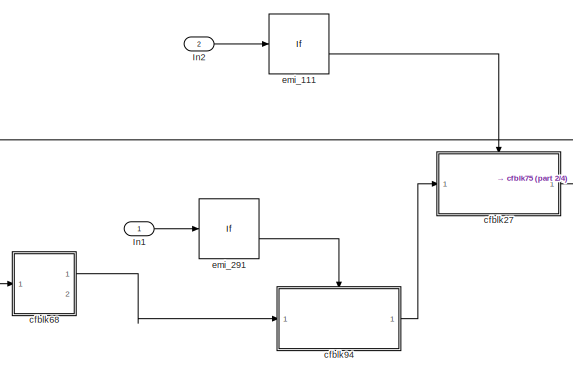
[diagram: root canvas - part 1/4, top center region]
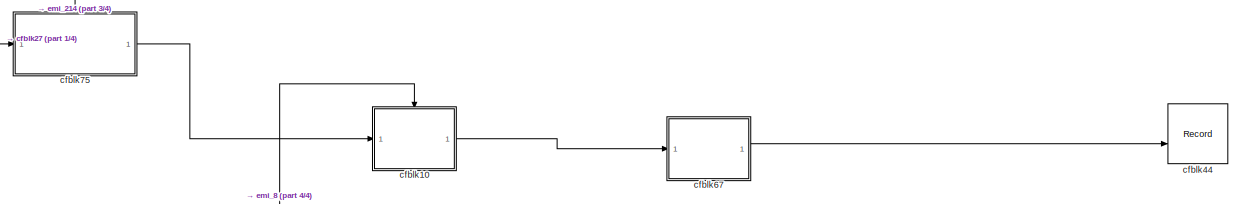
[diagram: root canvas - part 2/4, middle right region]
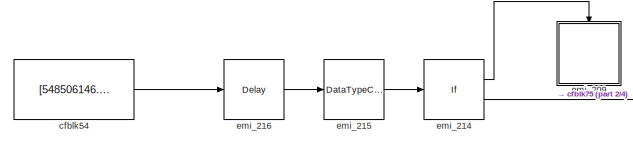
[diagram: root canvas - part 3/4, middle left region]
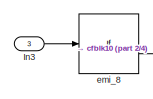
[diagram: root canvas - part 4/4, bottom left region]
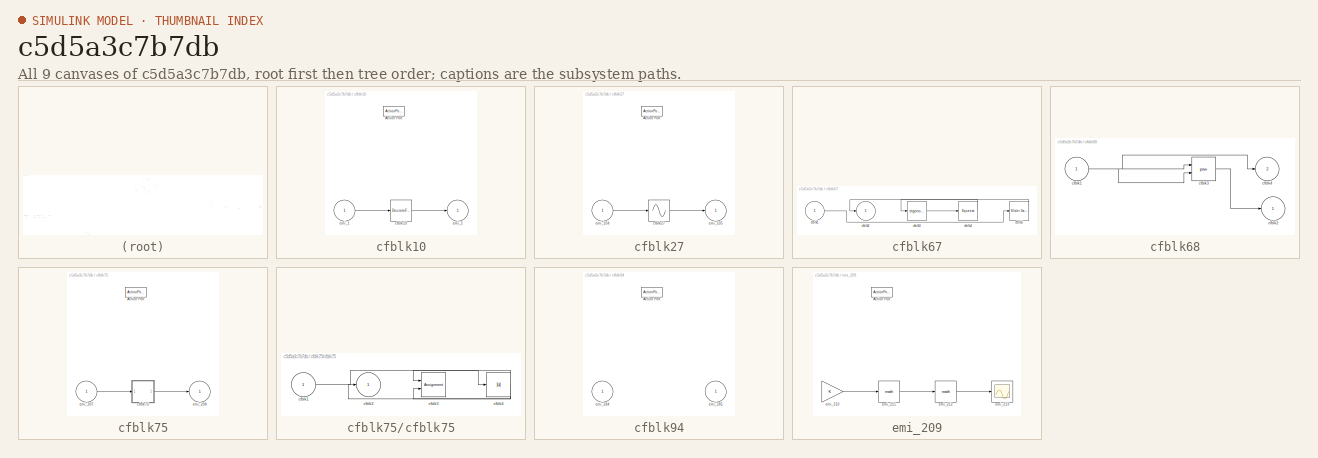
[diagram: thumbnail index - all 9 canvases of the model, root first then tree order]
MODEL slx_c5d5a3c7b7db
KIND model
CONFIG AbsTol = auto
CONFIG EnableMultiTasking = off
CONFIG FixedStep = auto
CONFIG MaxStep = auto
CONFIG MinStep = auto
CONFIG RelTol = 1e-3
CONFIG SampleTimeConstraint = Unconstrained
CONFIG SolverName = VariableStepAuto
CONFIG StartTime = 0.0
CONFIG StopTime = 10.0
BLOCK [Inport] In1
BLOCK [Inport] In2
  Port = 2
BLOCK [Inport] In3
  Port = 3
BLOCK [SubSystem] cfblk10
  Ports = [1, 1, 0, 0, 0, 0, 0, 1]
  RequestExecContextInheritance = off
  TreatAsAtomicUnit = on
BLOCK [ActionPort] cfblk10/Action Port
  ActionPortLabel = else
BLOCK [DiscreteFir] cfblk10/cfblk10
  InputPortMap = u0
  OutputPortMap = o0
  Ports = [1, 1]
  SampleTime = 1
BLOCK [Inport] cfblk10/emi_1
BLOCK [Outport] cfblk10/emi_2
BLOCK [SubSystem] cfblk27
  Ports = [1, 1, 0, 0, 0, 0, 0, 1]
  RequestExecContextInheritance = off
  TreatAsAtomicUnit = on
BLOCK [ActionPort] cfblk27/Action Port
  ActionPortLabel = else
BLOCK [Sin] cfblk27/cfblk27
  Ports = [1, 1]
  SampleTime = 0
  TimeSource = Use external signal
BLOCK [Inport] cfblk27/emi_104
BLOCK [Outport] cfblk27/emi_105
BLOCK [Record] cfblk44
  CompatibilityTag = XY
  FileSettingsInternal = {"entries":[{"content":{"excelSettings":{"content":{},"type":"Streamout.ExcelSettings"}},"type":"Streamout.FileSettingStorage","uuid":"304e5b07-cea9-4883-a8e5-ec6bcf0d3d06"}],"packageUris":["http://schema.mathworks.com/mf0/streamout_blocks/R2020a"],"version":"1.0"}
  Layout = [1 1]
  Ports = [2]
  SignalsInternal = {"entries":[{"content":{"signals":[{"content":{"blockPath":["sampleModel291_pp_618_1_difftest/cfblk44"],"channel":[],"dimensions":[1],"domain":"sampleModel291_pp_618_1_difftest/cfblk44","lineColor":"#fe330a","plots":[],"port":2,"sid":[""],"signalID":99089,"signalName":"cfblk67"},"type":"RecordBlkView.Signal","uuid":"e41c9464-13b2-4b25-8d39-bb65eb09fde0"},{"content":{"blockPath":["sampleModel291_pp...<+432ch>
  VisualizationBindings = {"xyplotplugin":{"info":[{"series":[],"subplotID":1}]}}
BLOCK [Constant] cfblk54
  SampleTime = 1
  Value = [548506146.640336]
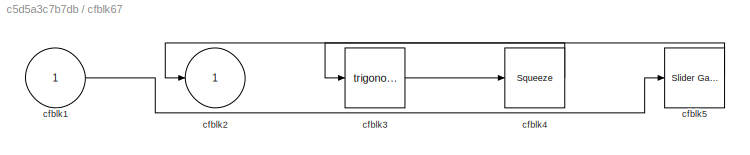
BLOCK [SubSystem] cfblk67
  Ports = [1, 1]
  RequestExecContextInheritance = off
BLOCK [Inport] cfblk67/cfblk1
BLOCK [Outport] cfblk67/cfblk2
BLOCK [Trigonometry] cfblk67/cfblk3
  Ports = [1, 1]
BLOCK [Squeeze] cfblk67/cfblk4
BLOCK [Reference] cfblk67/cfblk5  REF=simulink/Math
Operations/Slider
Gain
  Ports = [1, 1]
  SourceBlock = simulink/Math\nOperations/Slider\nGain
  SourceProductBaseCode = SL
  SourceType = Slider Gain
BLOCK [SubSystem] cfblk68
  Ports = [1, 2]
  RequestExecContextInheritance = off
BLOCK [Inport] cfblk68/cfblk1
BLOCK [Outport] cfblk68/cfblk2
BLOCK [Math] cfblk68/cfblk3
  Operator = pow
  Ports = [2, 1]
BLOCK [Outport] cfblk68/cfblk4
  Port = 2
BLOCK [SubSystem] cfblk75
  Ports = [1, 1, 0, 0, 0, 0, 0, 1]
  RequestExecContextInheritance = off
  TreatAsAtomicUnit = on
BLOCK [ActionPort] cfblk75/Action Port
  ActionPortLabel = else
BLOCK [SubSystem] cfblk75/cfblk75
  Ports = [1, 1]
  RequestExecContextInheritance = off
BLOCK [Inport] cfblk75/cfblk75/cfblk1
BLOCK [Outport] cfblk75/cfblk75/cfblk2
BLOCK [Assignment] cfblk75/cfblk75/cfblk3
  DiagnosticForDimensions = Warning
  IndexOptions = Index vector (dialog)
  Indices = 1
  OutputSizes = 1
  Ports = [2, 1]
BLOCK [Abs] cfblk75/cfblk75/cfblk4
  SaturateOnIntegerOverflow = off
BLOCK [Inport] cfblk75/emi_207
BLOCK [Outport] cfblk75/emi_208
BLOCK [SubSystem] cfblk94
  Ports = [1, 1, 0, 0, 0, 0, 0, 1]
  RequestExecContextInheritance = off
  TreatAsAtomicUnit = on
BLOCK [ActionPort] cfblk94/Action Port
  ActionPortLabel = else
BLOCK [Inport] cfblk94/emi_284
BLOCK [Outport] cfblk94/emi_285
BLOCK [If] emi_111
  IfExpression = 0 > u1
  Ports = [1, 2]
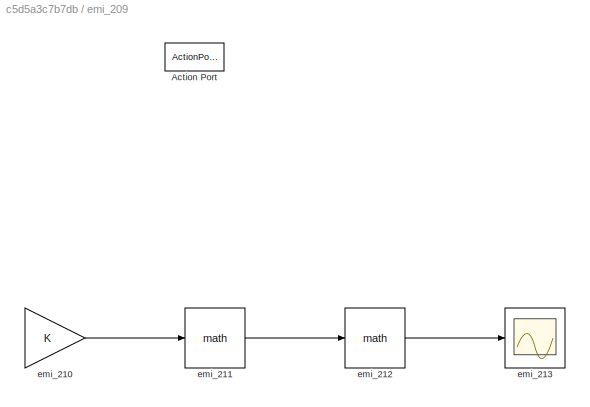
BLOCK [SubSystem] emi_209
  Ports = [0, 0, 0, 0, 0, 0, 0, 1]
  RequestExecContextInheritance = off
  TreatAsAtomicUnit = on
BLOCK [ActionPort] emi_209/Action Port
  ActionPortLabel = if(0 > u1)
BLOCK [Gain] emi_209/emi_210
  SampleTime = [1 0]
BLOCK [Math] emi_209/emi_211
  Ports = [1, 1]
  SampleTime = [1 0]
BLOCK [Math] emi_209/emi_212
  Ports = [1, 1]
  SampleTime = [1 0]
BLOCK [Scope] emi_209/emi_213
  Floating = off
  NumInputPorts = 1
  Ports = [1]
  ScopeSpecificationString = Simulink.scopes.TimeScopeBlockCfg
BLOCK [If] emi_214
  IfExpression = 0 > u1
  Ports = [1, 2]
  SampleTime = [1 0]
BLOCK [DataTypeConversion] emi_215
  OutDataTypeStr = double
  RndMeth = Floor
  SaturateOnIntegerOverflow = off
BLOCK [Delay] emi_216
  InitialCondition = 548506146.6403
  InputPortMap = u0
  Ports = [1, 1]
  SampleTime = 1
BLOCK [If] emi_291
  IfExpression = -1e+09 > u1
  Ports = [1, 2]
  SampleTime = [1 0]
BLOCK [If] emi_8
  IfExpression = 0 > u1
  Ports = [1, 2]
  SampleTime = [1 0]
LINE In1:1 -> emi_291:1
LINE In2:1 -> emi_111:1
LINE In3:1 -> emi_8:1
LINE cfblk10/cfblk10:1 -> cfblk10/emi_2:1
LINE cfblk10/emi_1:1 -> cfblk10/cfblk10:1
LINE cfblk10:1 -> cfblk67:1
LINE cfblk27/cfblk27:1 -> cfblk27/emi_105:1
LINE cfblk27/emi_104:1 -> cfblk27/cfblk27:1
NET cfblk27:1 -> cfblk68:1, cfblk75:1
LINE cfblk54:1 -> emi_216:1
LINE cfblk67/cfblk1:1 -> cfblk67/cfblk5:1
LINE cfblk67/cfblk3:1 -> cfblk67/cfblk4:1
LINE cfblk67/cfblk4:1 -> cfblk67/cfblk2:1
LINE cfblk67/cfblk5:1 -> cfblk67/cfblk3:1
LINE cfblk67:1 -> cfblk44:2
NET cfblk68/cfblk1:1 -> cfblk68/cfblk3:1, cfblk68/cfblk3:2, cfblk68/cfblk4:1
LINE cfblk68/cfblk3:1 -> cfblk68/cfblk2:1
LINE cfblk68:1 -> cfblk94:1
LINE cfblk75/cfblk75/cfblk1:1 -> cfblk75/cfblk75/cfblk4:1
NET cfblk75/cfblk75/cfblk4:1 -> cfblk75/cfblk75/cfblk2:1, cfblk75/cfblk75/cfblk3:1, cfblk75/cfblk75/cfblk3:2
LINE cfblk75/cfblk75:1 -> cfblk75/emi_208:1
LINE cfblk75/emi_207:1 -> cfblk75/cfblk75:1
LINE cfblk75:1 -> cfblk10:1
LINE cfblk94:1 -> cfblk27:1
LINE emi_111:2 -> cfblk27:ifaction
LINE emi_209/emi_210:1 -> emi_209/emi_211:1
LINE emi_209/emi_211:1 -> emi_209/emi_212:1
LINE emi_209/emi_212:1 -> emi_209/emi_213:1
LINE emi_214:1 -> emi_209:ifaction
LINE emi_214:2 -> cfblk75:ifaction
LINE emi_215:1 -> emi_214:1
LINE emi_216:1 -> emi_215:1
LINE emi_291:2 -> cfblk94:ifaction
LINE emi_8:2 -> cfblk10:ifaction
note: NET lines group one-source signal fan-out (src -> all destinations, sorted); 1:1 wires keep LINE
